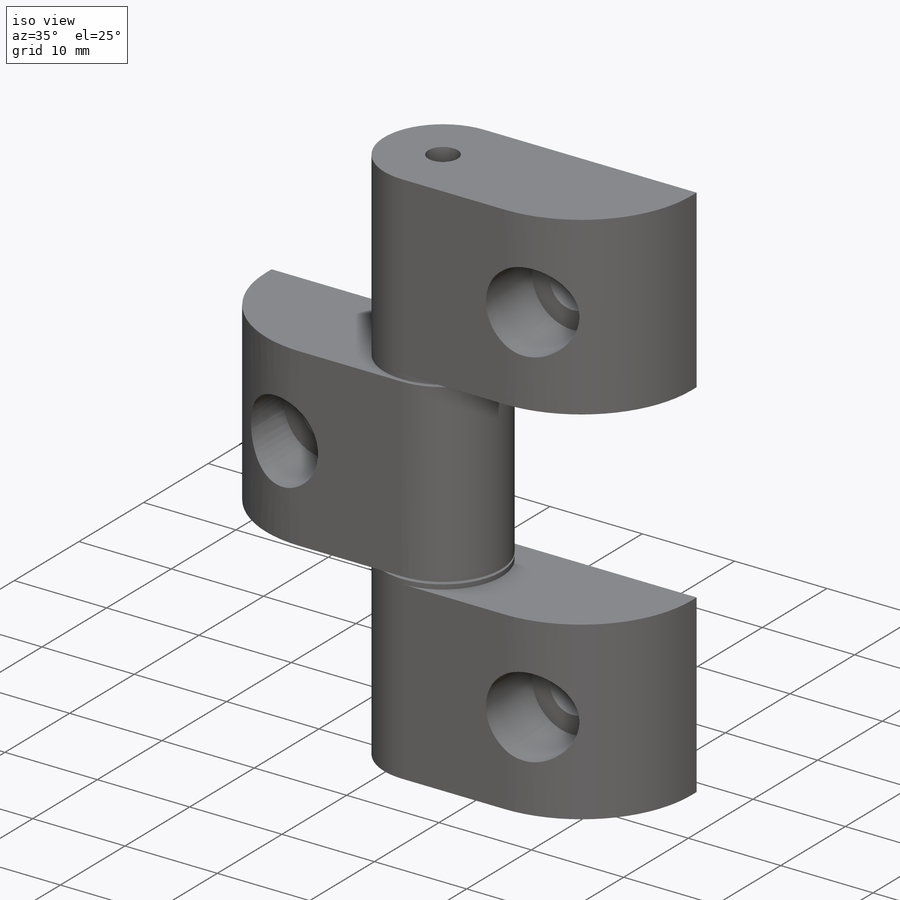
[diagram: iso view]
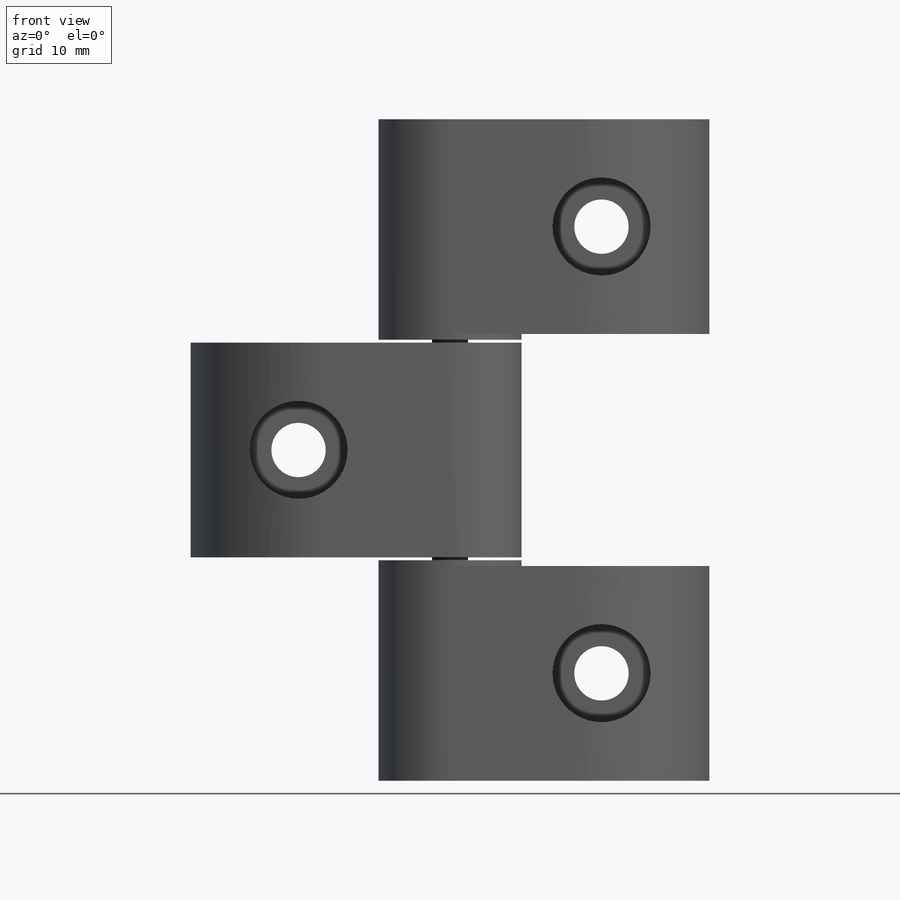
[diagram: front view]
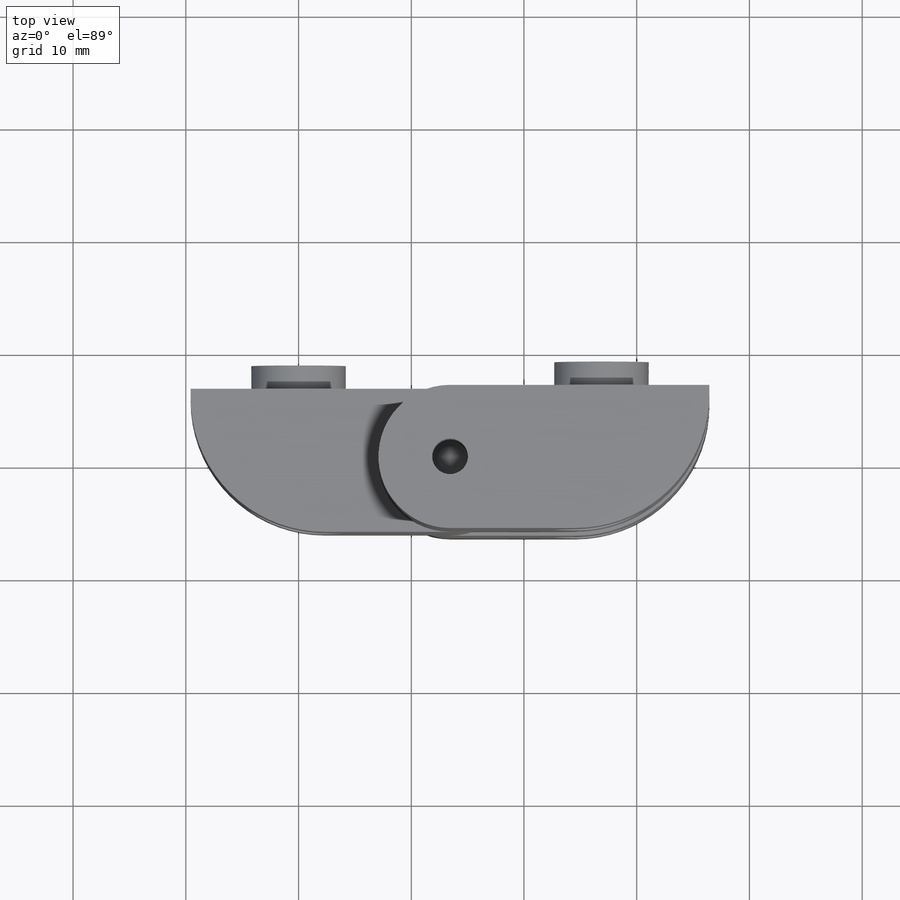
[diagram: top view]
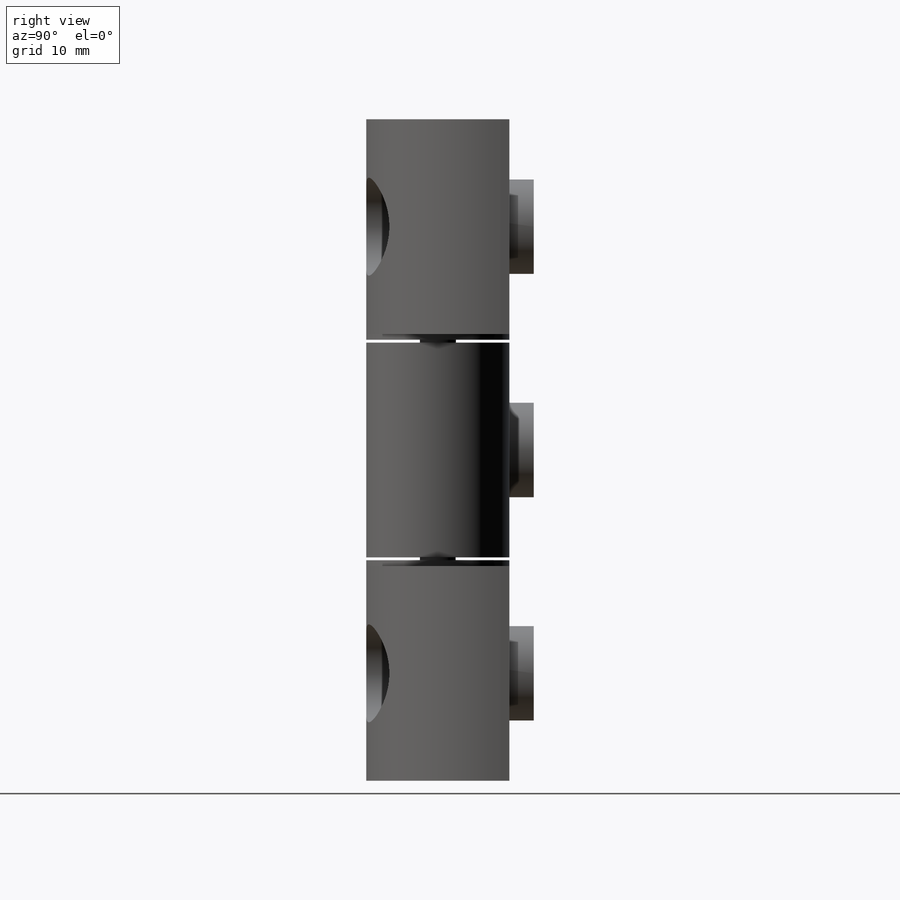
[diagram: right view]
SOLIDWORKS PART (.sldprt)
format: sldprt  version: not decoded by parser v0  size: 320,000 bytes
history: native  units: mm
features: sketch x8, extrude x5, cut_extrude x3, delete_body x2, material x1, plane x1, mirror x1, pattern_linear x1, chamfer x1 (+13 scaffold rows collapsed)
feature tree (36):
  scaffold x13  (default folders/planes/origin — collapsed)
  material  "Material <not specified>"
  sketch  "Sketch1"  dims[K=4.826mm C=19.05mm G=9.5758mm A=29.3624mm]
  extrude  "Extrude1"  Depth=12.7mm B=12.7mm
  sketch  "Sketch2"  dims[D1=1.778mm]
  extrude  "Extrude2"  Depth=2.159mm
  sketch  "Sketch3"  dims[c1.D2=3.175mm c1.D1=1.27mm c2.D2=13.4366mm c2.D3=~0.79375mm]
  cut_extrude  "Cut-Extrude1"  [1 undecoded]
  sketch  "Sketch4"  dims[D1=8.6868mm]
  cut_extrude  "Cut-Extrude2"  Depth=7.1501mm
  plane  "Plane1"  Offset=13.4366mm D=13.4366mm
  mirror  "Mirror1"
  pattern_linear  "LPattern1"  Count1=2 Count2=2 Spacing1=19.812mm Spacing2=19.812mm
  delete_body  "Body-Delete1"
  delete_body  "Body-Delete2"
  sketch  "Sketch5"
  extrude  "Extrude3"  Depth=0.508mm
  sketch  "Sketch6"
  extrude  "Extrude4"  Depth=0.508mm
  sketch  "Sketch7"
  extrude  "Extrude5"  Depth=9.144mm
  chamfer  "Chamfer1"  Distance=0.508mm Angle=45deg
  sketch  "Sketch8"  dims[D1=0.0mm]
  cut_extrude  "Cut-Extrude3"  [1 undecoded]
decode coverage: 13 of 21 modeling features carry decoded parameters
note: ~ marks probable driven/reference dimensions
note: 2 parameter values undecoded
note: suppression state not decoded; provenance and decode notes live in map.json
